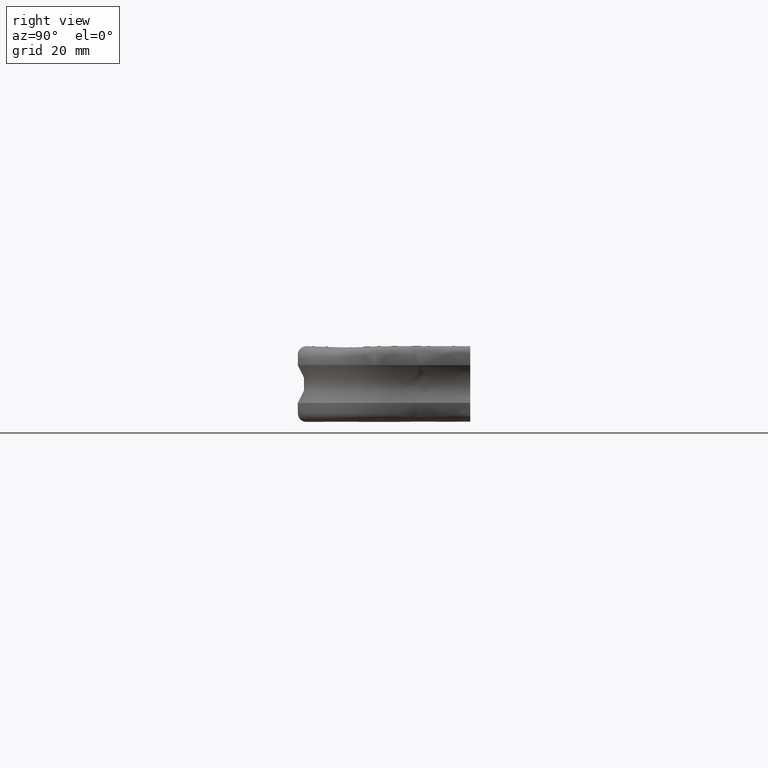
[diagram: clean part render]
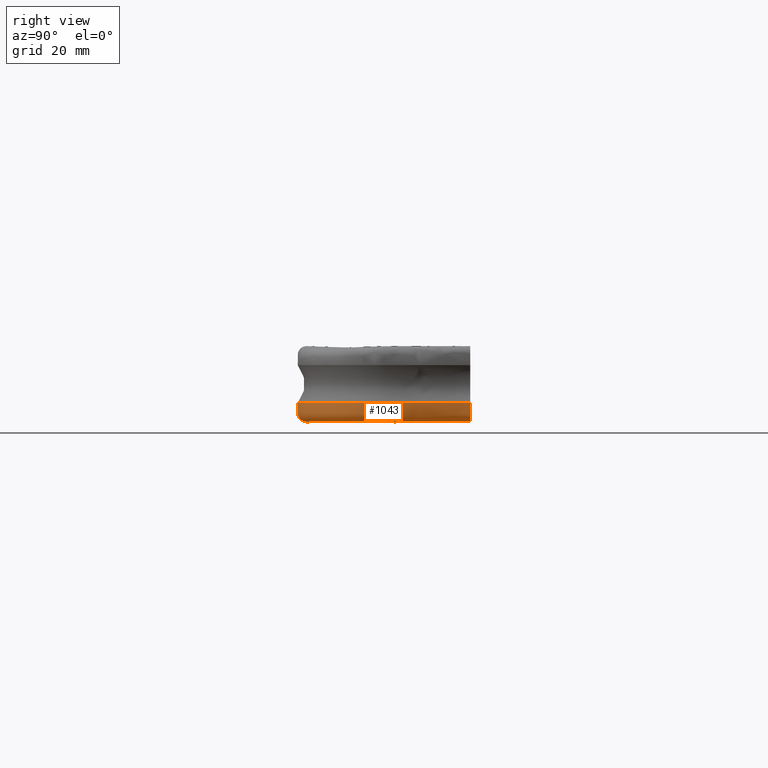
[diagram: same view with one face highlighted and labeled with its STEP entity id]
A machine part, right view. The second image highlights one B-rep face of the part: STEP entity #1043.
In plain terms, the highlighted face is a freeform B-spline surface patch.
Its self-contained STEP definition (entity closure, byte-faithful):
#523=CARTESIAN_POINT('',(72.279322906947300,0.008530691704574,-5.477225575051659));
#524=VERTEX_POINT('',#523);
#597=CARTESIAN_POINT('',(102.500000000000000,50.000000000000703,-5.477225575051670));
#598=VERTEX_POINT('',#597);
#623=CARTESIAN_POINT('',(102.500000000000000,50.000000000000703,-5.477225575051670));
#624=CARTESIAN_POINT('',(102.500000000000000,42.666666666667403,-5.477225575051670));
#625=CARTESIAN_POINT('',(102.500000000000000,35.333333333331993,-5.477225575051670));
#626=CARTESIAN_POINT('',(102.500000000000000,27.999999999998700,-5.477225575051670));
#627=CARTESIAN_POINT('',(102.500000000000000,20.077362500900399,-5.477225575051670));
#628=CARTESIAN_POINT('',(98.827712575007496,12.794172355642200,-5.477225575051659));
#629=CARTESIAN_POINT('',(93.206394417583098,7.408446156282840,-5.477225575051659));
#630=CARTESIAN_POINT('',(87.639024475649194,2.074407178574890,-5.477225575051659));
#631=CARTESIAN_POINT('',(80.029288747621507,-0.288197621302259,-5.477225575051700));
#632=CARTESIAN_POINT('',(72.352659783643304,0.005390529753477,-5.477225575051659));
#633=CARTESIAN_POINT('',(72.279322906947300,0.008530691704574,-5.477225575051659));
#634=B_SPLINE_CURVE_WITH_KNOTS('',3,(#623,#624,#625,#626,#627,#628,#629,#630,#631,#632,#633),.UNSPECIFIED.,.F.,.U.,(4,3,3,1,4),(0.0,1.0,2.0,2.990402924371170,3.0),.UNSPECIFIED.);
#635=EDGE_CURVE('',#598,#524,#634,.T.);
#846=CARTESIAN_POINT('',(72.299835684796108,2.508429898845060,-11.0));
#847=VERTEX_POINT('',#846);
#848=CARTESIAN_POINT('',(72.299835684796108,2.508429898845060,-11.0));
#849=CARTESIAN_POINT('',(72.297352619520709,2.205817889929740,-11.0));
#850=CARTESIAN_POINT('',(72.294972600146991,1.915764120072300,-10.946229619032620));
#851=CARTESIAN_POINT('',(72.288353167243287,1.109051582668176,-10.650220111700239));
#852=CARTESIAN_POINT('',(72.284648732690400,0.657590884850087,-10.272885070078400));
#853=CARTESIAN_POINT('',(72.280393201017205,0.138967793715382,-9.412229052087620));
#854=CARTESIAN_POINT('',(72.279322906947300,0.008530691704573,-8.971347748976330));
#855=CARTESIAN_POINT('',(72.279322906947300,0.008530691704573,-8.364607833234730));
#856=CARTESIAN_POINT('',(72.279322906947300,0.008530691704573,-8.229215666469411));
#857=CARTESIAN_POINT('',(72.279322906947300,0.008530691704573,-7.221624191486611));
#858=CARTESIAN_POINT('',(72.279322906947300,0.008530691704573,-6.349424883269141));
#859=CARTESIAN_POINT('',(72.279322906947300,0.008530691704574,-5.477225575051659));
#860=B_SPLINE_CURVE_WITH_KNOTS('',3,(#848,#849,#850,#851,#852,#853,#854,#855,#856,#857,#858,#859),.UNSPECIFIED.,.F.,.U.,(4,2,2,2,2,4),(0.799731923832814,0.817578756977377,0.853360382127025,0.881157446456285,0.889142007276672,0.940578723228143),.UNSPECIFIED.);
#861=EDGE_CURVE('',#847,#524,#860,.T.);
#875=CARTESIAN_POINT('',(98.685898896353791,50.330000288994640,-10.894580644562410));
#876=CARTESIAN_POINT('',(99.051302811946158,50.330000288994640,-10.926549344784730));
#877=CARTESIAN_POINT('',(99.416706727538539,50.330000288994640,-10.958518045007059));
#878=CARTESIAN_POINT('',(100.480368031002800,50.330000288994640,-11.051576350891381));
#879=CARTESIAN_POINT('',(101.172199683628410,50.330000288994640,-10.816731149991099));
#880=CARTESIAN_POINT('',(102.090434398580000,50.330000288994640,-9.975324055616120));
#881=CARTESIAN_POINT('',(102.434339309718690,50.330000288994633,-9.350149887670785));
#882=CARTESIAN_POINT('',(102.500000000000100,50.330000288994647,-8.656409196529852));
#883=CARTESIAN_POINT('',(102.500000000000000,50.330000288994640,-7.478596383983693));
#884=CARTESIAN_POINT('',(102.500000000000000,50.330000288994640,-6.457192767967385));
#885=CARTESIAN_POINT('',(102.500000000000000,50.330000288994640,-5.435789151951085));
#886=CARTESIAN_POINT('',(98.685898896353677,42.886666859330091,-10.894580644562410));
#887=CARTESIAN_POINT('',(99.051302811946130,42.886666859330091,-10.926549344784730));
#888=CARTESIAN_POINT('',(99.416706727538539,42.886666859330091,-10.958518045007059));
#889=CARTESIAN_POINT('',(100.480368031002800,42.886666859330091,-11.051576350891381));
#890=CARTESIAN_POINT('',(101.172199683628410,42.886666859330091,-10.816731149991099));
#891=CARTESIAN_POINT('',(102.090434398579800,42.886666859330091,-9.975324055616120));
#892=CARTESIAN_POINT('',(102.434339309718790,42.886666859330099,-9.350149887670785));
#893=CARTESIAN_POINT('',(102.500000000000100,42.886666859330091,-8.656409196529852));
#894=CARTESIAN_POINT('',(102.500000000000000,42.886666859330091,-7.478596383983692));
#895=CARTESIAN_POINT('',(102.500000000000000,42.886666859330077,-6.457192767967381));
#896=CARTESIAN_POINT('',(102.500000000000000,42.886666859330091,-5.435789151951084));
#897=CARTESIAN_POINT('',(98.685898896353791,35.443333429663298,-10.894580644562410));
#898=CARTESIAN_POINT('',(99.051302811946158,35.443333429663369,-10.926549344784730));
#899=CARTESIAN_POINT('',(99.416706727538539,35.443333429663312,-10.958518045007059));
#900=CARTESIAN_POINT('',(100.480368031002800,35.443333429663312,-11.051576350891381));
#901=CARTESIAN_POINT('',(101.172199683628410,35.443333429663312,-10.816731149991099));
#902=CARTESIAN_POINT('',(102.090434398580000,35.443333429663312,-9.975324055616120));
#903=CARTESIAN_POINT('',(102.434339309718790,35.443333429663312,-9.350149887670785));
#904=CARTESIAN_POINT('',(102.500000000000100,35.443333429663312,-8.656409196529852));
#905=CARTESIAN_POINT('',(102.500000000000000,35.443333429663312,-7.478596383983692));
#906=CARTESIAN_POINT('',(102.500000000000000,35.443333429663312,-6.457192767967384));
#907=CARTESIAN_POINT('',(102.500000000000000,35.443333429663312,-5.435789151951087));
#908=CARTESIAN_POINT('',(98.685898896353791,27.999999999998700,-10.894580644562410));
#909=CARTESIAN_POINT('',(99.051302811946158,27.999999999998700,-10.926549344784730));
#910=CARTESIAN_POINT('',(99.416706727538539,27.999999999998700,-10.958518045007059));
#911=CARTESIAN_POINT('',(100.480368031002800,27.999999999998700,-11.051576350891381));
#912=CARTESIAN_POINT('',(101.172199683628410,27.999999999998700,-10.816731149991099));
#913=CARTESIAN_POINT('',(102.090434398580000,27.999999999998700,-9.975324055616120));
#914=CARTESIAN_POINT('',(102.434339309718790,27.999999999998700,-9.350149887670785));
#915=CARTESIAN_POINT('',(102.500000000000100,27.999999999998700,-8.656409196529852));
#916=CARTESIAN_POINT('',(102.500000000000000,27.999999999998689,-7.478596383983693));
#917=CARTESIAN_POINT('',(102.500000000000000,27.999999999998700,-6.457192767967385));
#918=CARTESIAN_POINT('',(102.500000000000000,27.999999999998700,-5.435789151951085));
#919=CARTESIAN_POINT('',(98.685898896353407,21.117303416938672,-10.894580644562410));
#920=CARTESIAN_POINT('',(99.051302811945746,21.017673524500381,-10.926549344784730));
#921=CARTESIAN_POINT('',(99.416706727538141,20.918043632062041,-10.958518045007059));
#922=CARTESIAN_POINT('',(100.480368031002400,20.628029057141202,-11.051576350891381));
#923=CARTESIAN_POINT('',(101.172199683627990,20.439396395597999,-10.816731149991099));
#924=CARTESIAN_POINT('',(102.090434398579400,20.189033380917600,-9.975324055616120));
#925=CARTESIAN_POINT('',(102.434339309718300,20.095265340008019,-9.350149887670785));
#926=CARTESIAN_POINT('',(102.499999999999900,20.077362500900399,-8.656409196529852));
#927=CARTESIAN_POINT('',(102.500000000000000,20.077362500900399,-7.478596383983693));
#928=CARTESIAN_POINT('',(102.500000000000000,20.077362500900399,-6.457192767967385));
#929=CARTESIAN_POINT('',(102.500000000000000,20.077362500900399,-5.435789151951086));
#930=CARTESIAN_POINT('',(95.982292364457791,14.449151470719571,-10.947544471206170));
#931=CARTESIAN_POINT('',(96.289043027762446,14.271750027254299,-10.966045710465281));
#932=CARTESIAN_POINT('',(96.589758983298466,14.097679417941309,-10.954779421893560));
#933=CARTESIAN_POINT('',(97.433569082684485,13.608387703416479,-10.849930620895799));
#934=CARTESIAN_POINT('',(97.945092597066761,13.310734180561800,-10.543496985564561));
#935=CARTESIAN_POINT('',(98.587418983123300,12.935870994401469,-9.692456232504668));
#936=CARTESIAN_POINT('',(98.814907404009475,12.802694124212421,-9.095984524739450));
#937=CARTESIAN_POINT('',(98.825960440283069,12.795139439783380,-8.441331569570380));
#938=CARTESIAN_POINT('',(98.827712575007482,12.794172355642219,-7.343483857742698));
#939=CARTESIAN_POINT('',(98.827712575007482,12.794172355642219,-6.391035191131937));
#940=CARTESIAN_POINT('',(98.827712575007482,12.794172355642200,-5.438586524521177));
#941=CARTESIAN_POINT('',(86.021509016513349,4.938790783773390,-10.947544471206170));
#942=CARTESIAN_POINT('',(86.196397392794651,4.630869818473444,-10.966045710465281));
#943=CARTESIAN_POINT('',(86.367764777320218,4.328869323494683,-10.954779421893560));
#944=CARTESIAN_POINT('',(86.848193468603498,3.480722794012709,-10.849930620895799));
#945=CARTESIAN_POINT('',(87.138906552721778,2.965672449313274,-10.543496985564561));
#946=CARTESIAN_POINT('',(87.503404927402343,2.317972343834001,-9.692456232504668));
#947=CARTESIAN_POINT('',(87.632287691021020,2.088223688439308,-9.095984524739450));
#948=CARTESIAN_POINT('',(87.638002180592707,2.076126145264326,-8.441331569570380));
#949=CARTESIAN_POINT('',(87.639024475649194,2.074407178574889,-7.343483857742698));
#950=CARTESIAN_POINT('',(87.639024475649194,2.074407178574889,-6.391035191131937));
#951=CARTESIAN_POINT('',(87.639024475649194,2.074407178574892,-5.438586524521177));
#952=CARTESIAN_POINT('',(79.303339974674202,2.257391499600026,-11.000254148925089));
#953=CARTESIAN_POINT('',(79.394391200018887,1.938338351826642,-11.005352551341570));
#954=CARTESIAN_POINT('',(79.481642582771457,1.632569990963839,-10.951058738704500));
#955=CARTESIAN_POINT('',(79.715758535558905,0.811956547675317,-10.649252495560770));
#956=CARTESIAN_POINT('',(79.844539632161201,0.360346597640789,-10.271573945608180));
#957=CARTESIAN_POINT('',(79.992422574055141,-0.158495430373183,-9.410945761338875));
#958=CARTESIAN_POINT('',(80.039572277064678,-0.324019981900289,-8.843038783913251));
#959=CARTESIAN_POINT('',(80.028185490196151,-0.284340477370031,-8.227286000736980));
#960=CARTESIAN_POINT('',(80.029288747621507,-0.288197621302260,-7.209019674068090));
#961=CARTESIAN_POINT('',(80.029288747621507,-0.288197621302260,-6.325195073930651));
#962=CARTESIAN_POINT('',(80.029288747621507,-0.288197621302259,-5.441370473793263));
#963=CARTESIAN_POINT('',(72.366880656024009,2.550006118617191,-11.0));
#964=CARTESIAN_POINT('',(72.365099648588185,2.231321078504953,-11.005163026537311));
#965=CARTESIAN_POINT('',(72.363392613261126,1.925872257393821,-10.951076678628811));
#966=CARTESIAN_POINT('',(72.358810301341023,1.105935052911337,-10.650220100221190));
#967=CARTESIAN_POINT('',(72.356287207918498,0.654464659033658,-10.272885070078400));
#968=CARTESIAN_POINT('',(72.353386989730268,0.135513344709668,-9.412303113284569));
#969=CARTESIAN_POINT('',(72.352461119929430,-0.030157414828760,-8.844258406018385));
#970=CARTESIAN_POINT('',(72.352681260921969,0.009233572336695,-8.228318058862904));
#971=CARTESIAN_POINT('',(72.352659783643304,0.005390529753476,-7.209668016634446));
#972=CARTESIAN_POINT('',(72.352659783643304,0.005390529753476,-6.325512533564809));
#973=CARTESIAN_POINT('',(72.352659783643304,0.005390529753477,-5.441357050495162));
#974=CARTESIAN_POINT('',(72.195966437735237,2.557915121186939,-11.0));
#975=CARTESIAN_POINT('',(72.192047959976065,2.239247619963377,-11.005163026537311));
#976=CARTESIAN_POINT('',(72.188292231713234,1.933815609283219,-10.951076678628811));
#977=CARTESIAN_POINT('',(72.178210472937778,1.113923530192716,-10.650220100221190));
#978=CARTESIAN_POINT('',(72.172659297091386,0.662477983069616,-10.272885070078400));
#979=CARTESIAN_POINT('',(72.166278391409151,0.143555229324836,-9.412303113284569));
#980=CARTESIAN_POINT('',(72.164241341956227,-0.022106412493451,-8.844258406018385));
#981=CARTESIAN_POINT('',(72.164725684450232,0.017282406781919,-8.228318058862904));
#982=CARTESIAN_POINT('',(72.164678431284884,0.013439575701242,-7.209668016634446));
#983=CARTESIAN_POINT('',(72.164678431284884,0.013439575701242,-6.325512533564809));
#984=CARTESIAN_POINT('',(72.164678431284884,0.013439575701243,-5.441357050495162));
#985=CARTESIAN_POINT('',(72.091730721303080,2.562738596713877,-11.0));
#986=CARTESIAN_POINT('',(72.086508661239648,2.244081791959249,-11.005163026537311));
#987=CARTESIAN_POINT('',(72.081503493474088,1.938660033482412,-10.951076678628811));
#988=CARTESIAN_POINT('',(72.068067778610654,1.118795475083923,-10.650220100221190));
#989=CARTESIAN_POINT('',(72.060669861492357,0.667365081289145,-10.272885070078400));
#990=CARTESIAN_POINT('',(72.052166183589961,0.148459745828610,-9.412303113284569));
#991=CARTESIAN_POINT('',(72.049451457298488,-0.017196335351711,-8.844258406018385));
#992=CARTESIAN_POINT('',(72.050096928767331,0.022191161789208,-8.228318058862904));
#993=CARTESIAN_POINT('',(72.050033955622467,0.018348459697910,-7.209668016634446));
#994=CARTESIAN_POINT('',(72.050033955622467,0.018348459697910,-6.325512533564809));
#995=CARTESIAN_POINT('',(72.050033955622467,0.018348459697911,-5.441357050495162));
#996=CARTESIAN_POINT('',(71.987495004870908,2.567562072240815,-11.0));
#997=CARTESIAN_POINT('',(71.980969362503188,2.248915963955122,-11.005163026537311));
#998=CARTESIAN_POINT('',(71.974714755234928,1.943504457681604,-10.951076678628811));
#999=CARTESIAN_POINT('',(71.957925084283531,1.123667419975130,-10.650220100221190));
#1000=CARTESIAN_POINT('',(71.948680425893343,0.672252179508673,-10.272885070078400));
#1001=CARTESIAN_POINT('',(71.938053975770771,0.153364262332385,-9.412303113284569));
#1002=CARTESIAN_POINT('',(71.934661572640721,-0.012286258209971,-8.844258406018385));
#1003=CARTESIAN_POINT('',(71.935468173084473,0.027099916796496,-8.228318058862904));
#1004=CARTESIAN_POINT('',(71.935389479960051,0.023257343694578,-7.209668016634446));
#1005=CARTESIAN_POINT('',(71.935389479960051,0.023257343694578,-6.325512533564809));
#1006=CARTESIAN_POINT('',(71.935389479960051,0.023257343694579,-5.441357050495162));
#1007=B_SPLINE_SURFACE_WITH_KNOTS('',3,3,((#875,#886,#897,#908,#919,#930,#941,#952,#963,#974,#985,#996),(#876,#887,#898,#909,#920,#931,#942,#953,#964,#975,#986,#997),(#877,#888,#899,#910,#921,#932,#943,#954,#965,#976,#987,#998),(#878,#889,#900,#911,#922,#933,#944,#955,#966,#977,#988,#999),(#879,#890,#901,#912,#923,#934,#945,#956,#967,#978,#989,#1000),(#880,#891,#902,#913,#924,#935,#946,#957,#968,#979,#990,#1001),(#881,#892,#903,#914,#925,#936,#947,#958,#969,#980,#991,#1002),(#882,#893,#904,#915,#926,#937,#948,#959,#970,#981,#992,#1003),(#883,#894,#905,#916,#927,#938,#949,#960,#971,#982,#993,#1004),(#884,#895,#906,#917,#928,#939,#950,#961,#972,#983,#994,#1005),(#885,#896,#907,#918,#929,#940,#951,#962,#973,#984,#995,#1006)),.UNSPECIFIED.,.F.,.F.,.U.,(4,2,2,1,2,4),(4,3,2,1,2,4),(0.0,1.100399097563029,3.203172950534112,4.836719213915565,5.305946803505142,8.370157651554331),(0.0,24.124431496971731,47.892343994266639,71.432154037785608,71.660256491561555,72.016839528481086),.UNSPECIFIED.);
#1008=CARTESIAN_POINT('',(98.737299259534794,50.000000000000703,-10.899077593641859));
#1009=VERTEX_POINT('',#1008);
#1010=CARTESIAN_POINT('',(98.737299259534794,50.000000000000703,-10.899077593641859));
#1011=CARTESIAN_POINT('',(99.085569720733503,50.000000000000703,-10.929547310837700));
#1012=CARTESIAN_POINT('',(99.433840181932197,50.000000000000703,-10.960017028033540));
#1013=CARTESIAN_POINT('',(100.480368031002800,50.000000000000703,-11.051576350891381));
#1014=CARTESIAN_POINT('',(101.172199683628410,50.000000000000703,-10.816731149991099));
#1015=CARTESIAN_POINT('',(102.090434398580000,50.000000000000703,-9.975324055616120));
#1016=CARTESIAN_POINT('',(102.357597974803600,50.000000000000703,-9.489655601746591));
#1017=CARTESIAN_POINT('',(102.485348016674390,50.000000000000703,-8.811215321707950));
#1018=CARTESIAN_POINT('',(102.500000000000000,50.000000000000703,-8.656409196529850));
#1019=CARTESIAN_POINT('',(102.500000000000000,50.000000000000703,-7.492408525017221));
#1020=CARTESIAN_POINT('',(102.500000000000000,50.000000000000703,-6.484817050034440));
#1021=CARTESIAN_POINT('',(102.500000000000000,50.000000000000703,-5.477225575051670));
#1022=B_SPLINE_CURVE_WITH_KNOTS('',3,(#1010,#1011,#1012,#1013,#1014,#1015,#1016,#1017,#1018,#1019,#1020,#1021),.UNSPECIFIED.,.F.,.U.,(4,2,2,2,2,4),(0.799731923832814,0.817578756977377,0.853360382127025,0.881157446456285,0.889142007276672,0.940578723228143),.UNSPECIFIED.);
#1023=EDGE_CURVE('',#1009,#598,#1022,.T.);
#1024=ORIENTED_EDGE('',*,*,#1023,.T.);
#1025=ORIENTED_EDGE('',*,*,#635,.T.);
#1026=ORIENTED_EDGE('',*,*,#861,.F.);
#1027=CARTESIAN_POINT('',(98.737299259534794,50.000000000000703,-10.899077593641859));
#1028=CARTESIAN_POINT('',(98.737299259534694,42.666666666667403,-10.899077593641859));
#1029=CARTESIAN_POINT('',(98.737299259534794,35.333333333331993,-10.899077593641859));
#1030=CARTESIAN_POINT('',(98.737299259534794,27.999999999998700,-10.899077593641859));
#1031=CARTESIAN_POINT('',(98.737299259534410,21.103288754160051,-10.899077593641859));
#1032=CARTESIAN_POINT('',(96.025366524836301,14.424238631221000,-10.949782104332860));
#1033=CARTESIAN_POINT('',(91.011657774995598,9.636922482495381,-10.949782104332860));
#1034=CARTESIAN_POINT('',(86.046065967208094,4.895550568908179,-10.949782104332860));
#1035=CARTESIAN_POINT('',(79.316100290242701,2.212677621676260,-11.000243307512040));
#1036=CARTESIAN_POINT('',(72.366631053435100,2.505343412858650,-11.0));
#1037=CARTESIAN_POINT('',(72.299835684796108,2.508429898845060,-11.0));
#1038=B_SPLINE_CURVE_WITH_KNOTS('',3,(#1027,#1028,#1029,#1030,#1031,#1032,#1033,#1034,#1035,#1036,#1037),.UNSPECIFIED.,.F.,.U.,(4,3,3,1,4),(0.0,1.0,2.0,2.990402924371170,3.0),.UNSPECIFIED.);
#1039=EDGE_CURVE('',#1009,#847,#1038,.T.);
#1040=ORIENTED_EDGE('',*,*,#1039,.F.);
#1041=EDGE_LOOP('',(#1024,#1025,#1026,#1040));
#1042=FACE_OUTER_BOUND('',#1041,.T.);
#1043=ADVANCED_FACE('',(#1042),#1007,.T.);